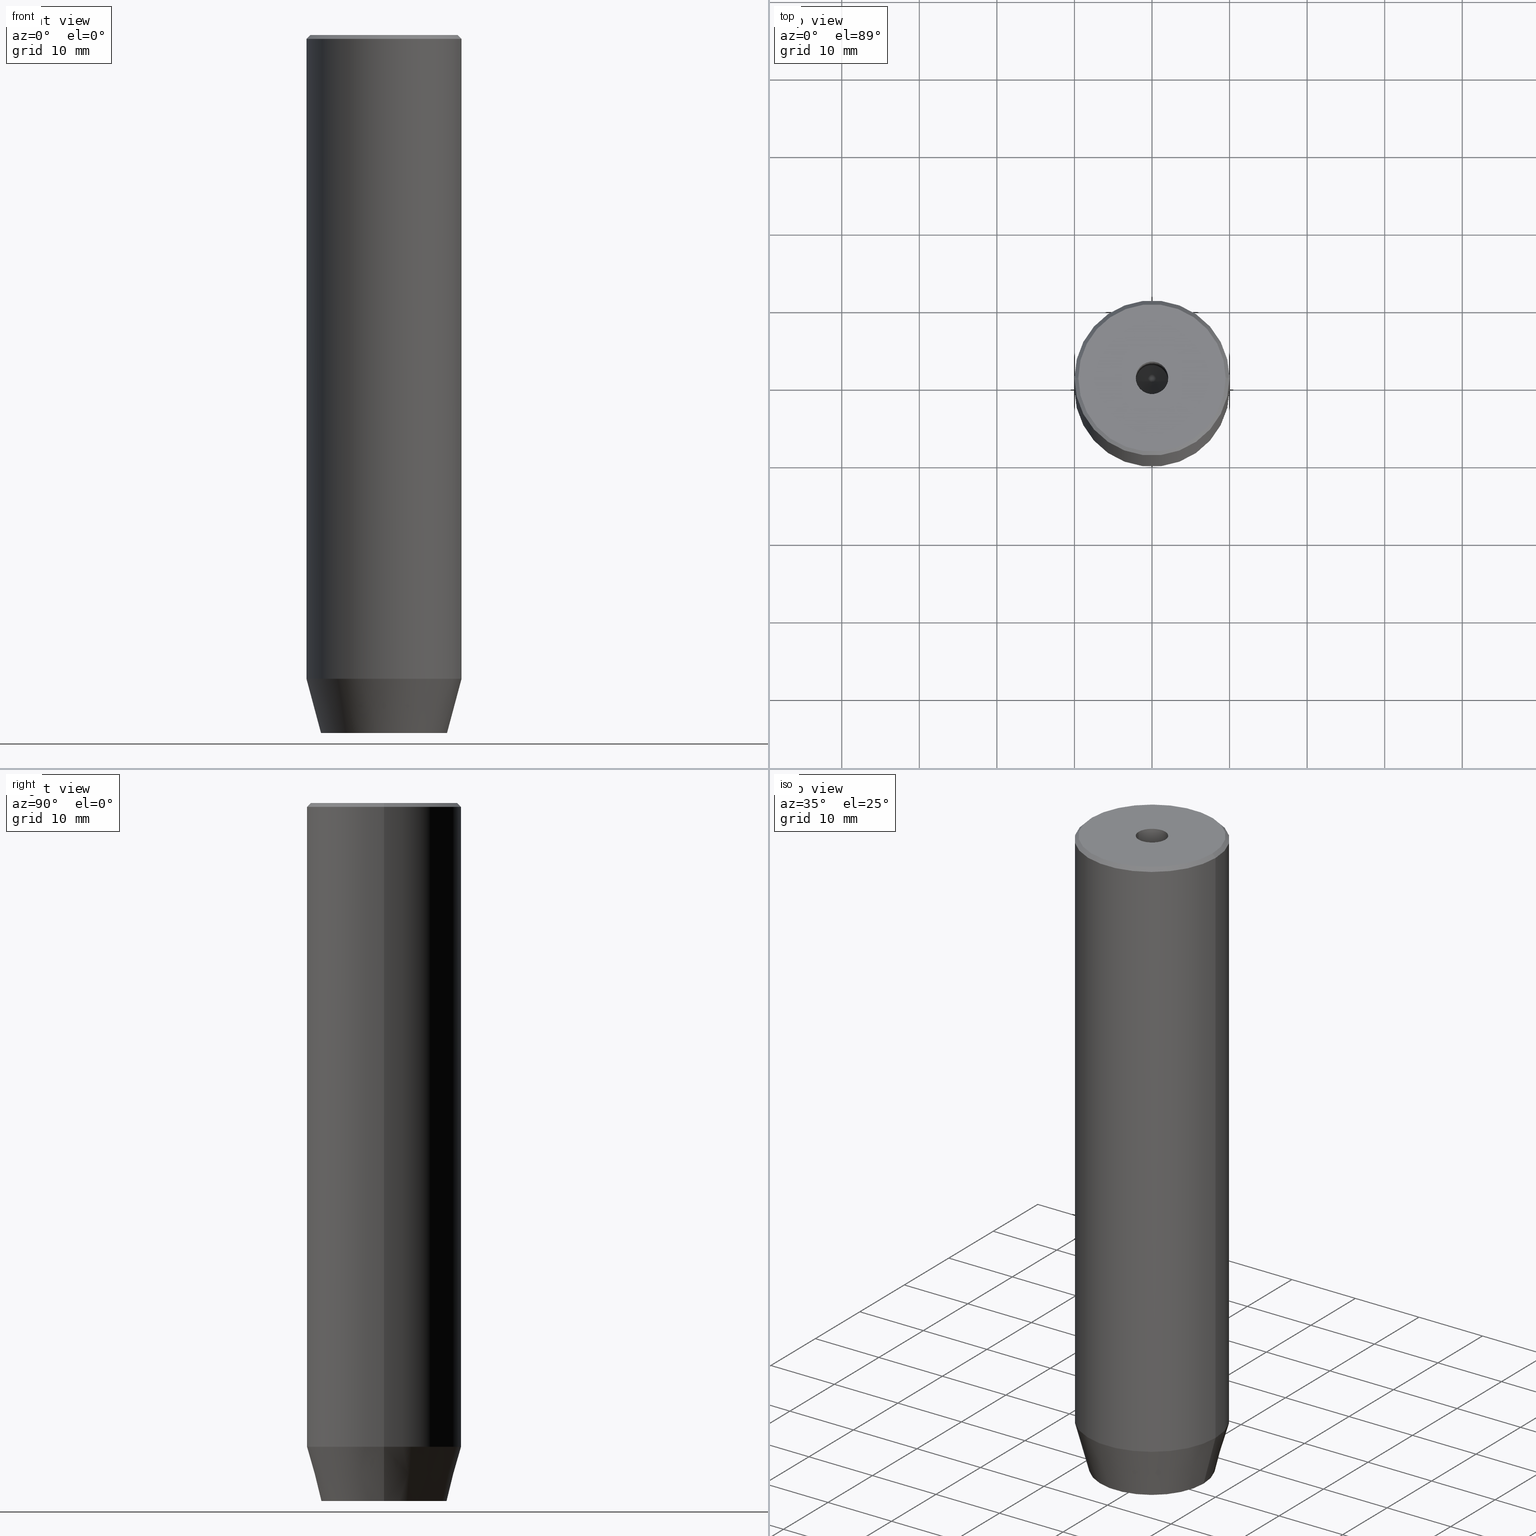
[diagram: canonical four-view strip — front | top / right | iso, engineering-drawing reading convention]
A machine part, canonical four-view strip (front | top / right | iso — engineering-drawing reading convention). The complete STEP part file that produces these views, byte-faithful:
ISO-10303-21;
HEADER;
FILE_DESCRIPTION (( 'STEP AP203' ),
    '1' );
FILE_NAME ('ebbf.STEP',
    '2024-01-02T19:05:43',
    ( '' ),
    ( '' ),
    'SwSTEP 2.0',
    'SolidWorks 2019',
    '' );
FILE_SCHEMA (( 'CONFIG_CONTROL_DESIGN' ));
ENDSEC;

DATA;
#1 = EDGE_CURVE ( 'NONE', #243, #150, #121, .T. ) ;
#2 = VERTEX_POINT ( 'NONE', #529 ) ;
#3 = APPROVAL_DATE_TIME ( #277, #30 ) ;
#4 = LINE ( 'NONE', #499, #350 ) ;
#5 = PERSON_AND_ORGANIZATION_ROLE ( 'design_owner' ) ;
#6 = LINE ( 'NONE', #62, #166 ) ;
#7 = EDGE_LOOP ( 'NONE', ( #74, #97, #93, #557 ) ) ;
#8 = DATE_TIME_ROLE ( 'classification_date' ) ;
#9 = CARTESIAN_POINT ( 'NONE',  ( 0.000000000000000000, 0.000000000000000000, 0.000000000000000000 ) ) ;
#10 = DIRECTION ( 'NONE',  ( -0.8660254037844384856, 0.5000000000000002220, 0.000000000000000000 ) ) ;
#11 = EDGE_LOOP ( 'NONE', ( #562, #449, #553 ) ) ;
#12 = DIRECTION ( 'NONE',  ( 0.8660254037844387076, 0.5000000000000001110, 0.000000000000000000 ) ) ;
#13 = DIRECTION ( 'NONE',  ( -0.5000000000000000000, 0.8660254037844387076, 0.000000000000000000 ) ) ;
#14 = LINE ( 'NONE', #196, #105 ) ;
#15 = AXIS2_PLACEMENT_3D ( 'NONE', #302, #270, #583 ) ;
#16 = ORIENTED_EDGE ( 'NONE', *, *, #435, .T. ) ;
#17 = DATE_AND_TIME ( #507, #522 ) ;
#18 = CYLINDRICAL_SURFACE ( 'NONE', #173, 2.099999999999996980 ) ;
#19 = EDGE_LOOP ( 'NONE', ( #199, #145, #359, #378 ) ) ;
#20 = EDGE_LOOP ( 'NONE', ( #188, #267, #390, #46 ) ) ;
#21 = EDGE_CURVE ( 'NONE', #100, #2, #494, .T. ) ;
#22 = PRODUCT ( 'ebbf', 'ebbf', '', ( #451 ) ) ;
#23 = EDGE_LOOP ( 'NONE', ( #108, #309, #459, #234 ) ) ;
#24 = VECTOR ( 'NONE', #313, 1000.000000000000000 ) ;
#25 = ADVANCED_FACE ( 'NONE', ( #123 ), #472, .T. ) ;
#26 = AXIS2_PLACEMENT_3D ( 'NONE', #533, #528, #139 ) ;
#27 = DIRECTION ( 'NONE',  ( -0.000000000000000000, -0.000000000000000000, 1.000000000000000000 ) ) ;
#28 = DIRECTION ( 'NONE',  ( 1.000000000000000000, 0.000000000000000000, 0.000000000000000000 ) ) ;
#29 = APPROVAL_DATE_TIME ( #428, #577 ) ;
#30 = APPROVAL ( #354, 'NEUR�EN�' ) ;
#31 = CARTESIAN_POINT ( 'NONE',  ( -2.099999999999996980, 2.571758278209438013E-16, 0.000000000000000000 ) ) ;
#32 = AXIS2_PLACEMENT_3D ( 'NONE', #391, #175, #135 ) ;
#33 = CC_DESIGN_APPROVAL ( #30, ( #492 ) ) ;
#34 = DATE_AND_TIME ( #89, #197 ) ;
#35 = PLANE ( 'NONE',  #585 ) ;
#36 = EDGE_CURVE ( 'NONE', #230, #365, #214, .T. ) ;
#37 = VECTOR ( 'NONE', #295, 1000.000000000000000 ) ;
#38 = VECTOR ( 'NONE', #331, 1000.000000000000000 ) ;
#39 = PRODUCT_DEFINITION_FORMATION_WITH_SPECIFIED_SOURCE ( 'LIBOVOLN�', '', #22, .NOT_KNOWN. ) ;
#40 = DIRECTION ( 'NONE',  ( -0.000000000000000000, -0.000000000000000000, 1.000000000000000000 ) ) ;
#41 = EDGE_LOOP ( 'NONE', ( #462, #72, #502, #458, #330, #76 ) ) ;
#42 = COORDINATED_UNIVERSAL_TIME_OFFSET ( 1, 0, .AHEAD. ) ;
#43 = ADVANCED_FACE ( 'NONE', ( #86 ), #213, .T. ) ;
#44 = CARTESIAN_POINT ( 'NONE',  ( 0.000000000000000000, 0.000000000000000000, 0.000000000000000000 ) ) ;
#45 = FACE_BOUND ( 'NONE', #543, .T. ) ;
#46 = ORIENTED_EDGE ( 'NONE', *, *, #463, .F. ) ;
#47 = CARTESIAN_POINT ( 'NONE',  ( 0.000000000000000000, 0.000000000000000000, -82.99999999999998579 ) ) ;
#48 = ADVANCED_FACE ( 'NONE', ( #209 ), #294, .F. ) ;
#49 = CARTESIAN_POINT ( 'NONE',  ( -9.499999999999994671, 0.000000000000000000, 0.000000000000000000 ) ) ;
#50 = ORIENTED_EDGE ( 'NONE', *, *, #132, .F. ) ;
#51 = DIRECTION ( 'NONE',  ( -0.000000000000000000, -0.000000000000000000, -1.000000000000000000 ) ) ;
#52 = CARTESIAN_POINT ( 'NONE',  ( 4.000000000000000000, 0.000000000000000000, -90.00000000000000000 ) ) ;
#53 = VECTOR ( 'NONE', #51, 1000.000000000000000 ) ;
#54 = CARTESIAN_POINT ( 'NONE',  ( 0.000000000000000000, 0.000000000000000000, -87.20000000000000284 ) ) ;
#55 = LOCAL_TIME ( 20, 5, 43.00000000000000000, #312 ) ;
#56 = DIRECTION ( 'NONE',  ( -0.000000000000000000, -0.000000000000000000, 1.000000000000000000 ) ) ;
#57 = ORIENTED_EDGE ( 'NONE', *, *, #21, .F. ) ;
#58 = EDGE_CURVE ( 'NONE', #242, #100, #83, .T. ) ;
#59 = CARTESIAN_POINT ( 'NONE',  ( 4.000000000000000000, -2.309401076758502480, -90.00000000000000000 ) ) ;
#60 = CARTESIAN_POINT ( 'NONE',  ( -2.000000000000000888, -3.464101615137754386, -87.20000000000000284 ) ) ;
#61 = PERSON_AND_ORGANIZATION ( #422, #143 ) ;
#62 = CARTESIAN_POINT ( 'NONE',  ( 10.00000000000000000, 0.000000000000000000, -82.99999999999998579 ) ) ;
#63 = ORIENTED_EDGE ( 'NONE', *, *, #36, .F. ) ;
#64 = EDGE_CURVE ( 'NONE', #467, #365, #537, .T. ) ;
#65 = APPLICATION_PROTOCOL_DEFINITION ( 'international standard', 'config_control_design', 1994, #265 ) ;
#66 = ORIENTED_EDGE ( 'NONE', *, *, #78, .F. ) ;
#67 = CARTESIAN_POINT ( 'NONE',  ( -4.000000000000000000, 0.000000000000000000, -87.20000000000000284 ) ) ;
#68 = VECTOR ( 'NONE', #576, 1000.000000000000000 ) ;
#69 = ORIENTED_EDGE ( 'NONE', *, *, #88, .F. ) ;
#70 = DIRECTION ( 'NONE',  ( -0.000000000000000000, -0.000000000000000000, 1.000000000000000000 ) ) ;
#71 = ADVANCED_FACE ( 'NONE', ( #380 ), #163, .T. ) ;
#72 = ORIENTED_EDGE ( 'NONE', *, *, #570, .T. ) ;
#73 = ADVANCED_FACE ( 'NONE', ( #433 ), #35, .F. ) ;
#74 = ORIENTED_EDGE ( 'NONE', *, *, #236, .T. ) ;
#75 = DIRECTION ( 'NONE',  ( -0.5000000000000003331, -0.8660254037844385966, 0.000000000000000000 ) ) ;
#76 = ORIENTED_EDGE ( 'NONE', *, *, #351, .T. ) ;
#77 = VECTOR ( 'NONE', #429, 1000.000000000000114 ) ;
#78 = EDGE_CURVE ( 'NONE', #515, #226, #289, .T. ) ;
#79 = CC_DESIGN_SECURITY_CLASSIFICATION ( #492, ( #39 ) ) ;
#80 = DIRECTION ( 'NONE',  ( -0.000000000000000000, -0.000000000000000000, 1.000000000000000000 ) ) ;
#81 = CARTESIAN_POINT ( 'NONE',  ( 0.000000000000000000, 0.000000000000000000, 0.000000000000000000 ) ) ;
#82 = COORDINATED_UNIVERSAL_TIME_OFFSET ( 1, 0, .AHEAD. ) ;
#83 = LINE ( 'NONE', #430, #164 ) ;
#84 = DIRECTION ( 'NONE',  ( 0.8660254037844387076, 0.5000000000000001110, 0.000000000000000000 ) ) ;
#85 = DIRECTION ( 'NONE',  ( -0.000000000000000000, -0.000000000000000000, 1.000000000000000000 ) ) ;
#86 = FACE_OUTER_BOUND ( 'NONE', #547, .T. ) ;
#87 = VECTOR ( 'NONE', #417, 1000.000000000000000 ) ;
#88 = EDGE_CURVE ( 'NONE', #446, #421, #477, .T. ) ;
#89 = CALENDAR_DATE ( 2024, 2, 1 ) ;
#90 = CARTESIAN_POINT ( 'NONE',  ( 0.000000000000000000, 0.000000000000000000, -90.00000000000000000 ) ) ;
#91 = ADVANCED_FACE ( 'NONE', ( #179 ), #170, .F. ) ;
#92 = ORIENTED_EDGE ( 'NONE', *, *, #251, .F. ) ;
#93 = ORIENTED_EDGE ( 'NONE', *, *, #570, .F. ) ;
#94 = CIRCLE ( 'NONE', #117, 8.124355652982135467 ) ;
#95 = DIRECTION ( 'NONE',  ( -0.000000000000000000, -0.000000000000000000, 1.000000000000000000 ) ) ;
#96 = DIRECTION ( 'NONE',  ( -0.000000000000000000, -0.000000000000000000, 1.000000000000000000 ) ) ;
#97 = ORIENTED_EDGE ( 'NONE', *, *, #155, .F. ) ;
#98 = CALENDAR_DATE ( 2024, 2, 1 ) ;
#99 = DIRECTION ( 'NONE',  ( 1.000000000000000000, 0.000000000000000000, 0.000000000000000000 ) ) ;
#100 = VERTEX_POINT ( 'NONE', #336 ) ;
#101 = CARTESIAN_POINT ( 'NONE',  ( 0.000000000000000000, 0.000000000000000000, -90.00000000000000000 ) ) ;
#102 = ORIENTED_EDGE ( 'NONE', *, *, #443, .F. ) ;
#103 = COORDINATED_UNIVERSAL_TIME_OFFSET ( 1, 0, .AHEAD. ) ;
#104 = LINE ( 'NONE', #52, #205 ) ;
#105 = VECTOR ( 'NONE', #70, 1000.000000000000000 ) ;
#106 =( GEOMETRIC_REPRESENTATION_CONTEXT ( 3 ) GLOBAL_UNCERTAINTY_ASSIGNED_CONTEXT ( ( #505 ) ) GLOBAL_UNIT_ASSIGNED_CONTEXT ( ( #373, #232, #364 ) ) REPRESENTATION_CONTEXT ( 'NONE', 'WORKASPACE' ) );
#107 = PRODUCT_DEFINITION ( 'NEZN�M�', '', #39, #545 ) ;
#108 = ORIENTED_EDGE ( 'NONE', *, *, #409, .T. ) ;
#109 = CARTESIAN_POINT ( 'NONE',  ( -6.432287649943602629E-15, 0.000000000000000000, -26.26180729995787999 ) ) ;
#110 = DIRECTION ( 'NONE',  ( 1.000000000000000000, 0.000000000000000000, 0.000000000000000000 ) ) ;
#111 = VERTEX_POINT ( 'NONE', #211 ) ;
#112 = PERSON_AND_ORGANIZATION ( #422, #143 ) ;
#113 = CARTESIAN_POINT ( 'NONE',  ( 0.000000000000000000, 4.618802153517006737, -87.20000000000000284 ) ) ;
#114 = DIRECTION ( 'NONE',  ( 1.000000000000000000, 0.000000000000000000, 0.000000000000000000 ) ) ;
#115 = ORIENTED_EDGE ( 'NONE', *, *, #435, .F. ) ;
#116 = FACE_BOUND ( 'NONE', #264, .T. ) ;
#117 = AXIS2_PLACEMENT_3D ( 'NONE', #90, #85, #255 ) ;
#118 = AXIS2_PLACEMENT_3D ( 'NONE', #519, #80, #138 ) ;
#119 = VERTEX_POINT ( 'NONE', #394 ) ;
#120 = EDGE_LOOP ( 'NONE', ( #419, #201, #223, #540 ) ) ;
#121 = LINE ( 'NONE', #323, #392 ) ;
#122 = AXIS2_PLACEMENT_3D ( 'NONE', #101, #346, #268 ) ;
#123 = FACE_OUTER_BOUND ( 'NONE', #356, .T. ) ;
#124 = VECTOR ( 'NONE', #278, 1000.000000000000114 ) ;
#125 = PLANE ( 'NONE',  #368 ) ;
#126 = LINE ( 'NONE', #113, #53 ) ;
#127 = CARTESIAN_POINT ( 'NONE',  ( 2.000000000000000444, 3.464101615137754386, -87.20000000000000284 ) ) ;
#128 = DIRECTION ( 'NONE',  ( 1.000000000000000000, 0.000000000000000000, 0.000000000000000000 ) ) ;
#129 = SECURITY_CLASSIFICATION_LEVEL ( 'unclassified' ) ;
#130 = AXIS2_PLACEMENT_3D ( 'NONE', #483, #580, #167 ) ;
#131 = AXIS2_PLACEMENT_3D ( 'NONE', #81, #210, #418 ) ;
#132 = EDGE_CURVE ( 'NONE', #534, #446, #347, .T. ) ;
#133 = APPLICATION_CONTEXT ( 'configuration controlled 3d designs of mechanical parts and assemblies' ) ;
#134 = VERTEX_POINT ( 'NONE', #306 ) ;
#135 = DIRECTION ( 'NONE',  ( 1.000000000000000000, 0.000000000000000000, 0.000000000000000000 ) ) ;
#136 = EDGE_CURVE ( 'NONE', #150, #454, #126, .T. ) ;
#137 = VERTEX_POINT ( 'NONE', #455 ) ;
#138 = DIRECTION ( 'NONE',  ( 1.000000000000000000, 0.000000000000000000, 0.000000000000000000 ) ) ;
#139 = DIRECTION ( 'NONE',  ( -1.000000000000000000, 0.000000000000000000, -0.000000000000000000 ) ) ;
#140 = APPROVAL ( #431, 'NEUR�EN�' ) ;
#141 = VERTEX_POINT ( 'NONE', #228 ) ;
#142 = AXIS2_PLACEMENT_3D ( 'NONE', #384, #520, #523 ) ;
#143 = ORGANIZATION ( 'NEUR�EN�', 'NEUR�EN�', '' ) ;
#144 = DIRECTION ( 'NONE',  ( -0.000000000000000000, -0.000000000000000000, -1.000000000000000000 ) ) ;
#145 = ORIENTED_EDGE ( 'NONE', *, *, #479, .F. ) ;
#146 = CARTESIAN_POINT ( 'NONE',  ( 10.00000000000000000, 0.000000000000000000, 0.000000000000000000 ) ) ;
#147 = ORIENTED_EDGE ( 'NONE', *, *, #244, .F. ) ;
#148 = EDGE_CURVE ( 'NONE', #271, #515, #405, .T. ) ;
#149 = CARTESIAN_POINT ( 'NONE',  ( 4.000000000000000000, 0.000000000000000000, -87.20000000000000284 ) ) ;
#150 = VERTEX_POINT ( 'NONE', #237 ) ;
#151 = DIRECTION ( 'NONE',  ( 0.000000000000000000, -1.000000000000000000, 0.000000000000000000 ) ) ;
#152 = CIRCLE ( 'NONE', #32, 2.099999999999995648 ) ;
#153 = ORIENTED_EDGE ( 'NONE', *, *, #198, .F. ) ;
#154 = LINE ( 'NONE', #496, #386 ) ;
#155 = EDGE_CURVE ( 'NONE', #271, #191, #4, .T. ) ;
#156 = DIRECTION ( 'NONE',  ( -0.8660254037844385966, -0.4999999999999999445, 0.000000000000000000 ) ) ;
#157 = LINE ( 'NONE', #464, #38 ) ;
#158 = EDGE_LOOP ( 'NONE', ( #401, #178, #408, #115 ) ) ;
#159 = ORIENTED_EDGE ( 'NONE', *, *, #204, .T. ) ;
#160 = CARTESIAN_POINT ( 'NONE',  ( 4.336808689942017736E-16, -4.618802153517006737, -87.20000000000000284 ) ) ;
#161 = ORIENTED_EDGE ( 'NONE', *, *, #290, .T. ) ;
#162 = DIRECTION ( 'NONE',  ( 0.8660254037844384856, -0.5000000000000002220, 0.000000000000000000 ) ) ;
#163 = CYLINDRICAL_SURFACE ( 'NONE', #366, 10.00000000000000000 ) ;
#164 = VECTOR ( 'NONE', #247, 1000.000000000000114 ) ;
#165 = CARTESIAN_POINT ( 'NONE',  ( -2.000000000000000888, -3.464101615137754386, -90.00000000000000000 ) ) ;
#166 = VECTOR ( 'NONE', #447, 1000.000000000000000 ) ;
#167 = DIRECTION ( 'NONE',  ( 1.000000000000000000, 0.000000000000000000, 0.000000000000000000 ) ) ;
#168 = CARTESIAN_POINT ( 'NONE',  ( 2.000000000000000888, -3.464101615137754386, -87.20000000000000284 ) ) ;
#169 = CARTESIAN_POINT ( 'NONE',  ( 2.099999999999995648, 0.000000000000000000, -25.00000000000000000 ) ) ;
#170 = CYLINDRICAL_SURFACE ( 'NONE', #491, 2.099999999999996980 ) ;
#171 = MANIFOLD_SOLID_BREP ( 'Vrt�k z�vitn�ku pro M5 z�vit1', #333 ) ;
#172 = PERSON_AND_ORGANIZATION ( #422, #143 ) ;
#173 = AXIS2_PLACEMENT_3D ( 'NONE', #9, #279, #195 ) ;
#174 = ADVANCED_FACE ( 'NONE', ( #411 ), #18, .F. ) ;
#175 = DIRECTION ( 'NONE',  ( -0.000000000000000000, -0.000000000000000000, 1.000000000000000000 ) ) ;
#176 = EDGE_LOOP ( 'NONE', ( #468, #282, #182, #352 ) ) ;
#177 = CARTESIAN_POINT ( 'NONE',  ( 0.000000000000000000, 0.000000000000000000, -1.990051048614449116E-16 ) ) ;
#178 = ORIENTED_EDGE ( 'NONE', *, *, #443, .T. ) ;
#179 = FACE_OUTER_BOUND ( 'NONE', #20, .T. ) ;
#180 = CARTESIAN_POINT ( 'NONE',  ( 0.000000000000000000, 0.000000000000000000, -0.5000000000000125455 ) ) ;
#181 = DIRECTION ( 'NONE',  ( 0.000000000000000000, -0.000000000000000000, 1.000000000000000000 ) ) ;
#182 = ORIENTED_EDGE ( 'NONE', *, *, #372, .F. ) ;
#183 = AXIS2_PLACEMENT_3D ( 'NONE', #180, #369, #224 ) ;
#184 = CIRCLE ( 'NONE', #261, 2.099999999999995648 ) ;
#185 = LINE ( 'NONE', #60, #475 ) ;
#186 = CARTESIAN_POINT ( 'NONE',  ( 2.000000000000000444, 3.464101615137754386, -87.20000000000000284 ) ) ;
#187 = DIRECTION ( 'NONE',  ( -0.000000000000000000, -0.000000000000000000, -1.000000000000000000 ) ) ;
#188 = ORIENTED_EDGE ( 'NONE', *, *, #318, .F. ) ;
#189 = DIRECTION ( 'NONE',  ( 0.000000000000000000, 1.000000000000000000, 0.000000000000000000 ) ) ;
#190 = APPLICATION_PROTOCOL_DEFINITION ( 'international standard', 'config_control_design', 1994, #133 ) ;
#191 = VERTEX_POINT ( 'NONE', #325 ) ;
#192 = CC_DESIGN_PERSON_AND_ORGANIZATION_ASSIGNMENT ( #273, #5, ( #22 ) ) ;
#193 = ORIENTED_EDGE ( 'NONE', *, *, #337, .T. ) ;
#194 = AXIS2_PLACEMENT_3D ( 'NONE', #291, #95, #99 ) ;
#195 = DIRECTION ( 'NONE',  ( 1.000000000000000000, 0.000000000000000000, 0.000000000000000000 ) ) ;
#196 = CARTESIAN_POINT ( 'NONE',  ( -10.00000000000000000, 1.224646799147353256E-15, 0.000000000000000000 ) ) ;
#197 = LOCAL_TIME ( 20, 5, 43.00000000000000000, #42 ) ;
#198 = EDGE_CURVE ( 'NONE', #226, #446, #461, .T. ) ;
#199 = ORIENTED_EDGE ( 'NONE', *, *, #88, .T. ) ;
#200 = CARTESIAN_POINT ( 'NONE',  ( 2.000000000000000888, -3.464101615137754386, -90.00000000000000000 ) ) ;
#201 = ORIENTED_EDGE ( 'NONE', *, *, #36, .T. ) ;
#202 = CARTESIAN_POINT ( 'NONE',  ( 8.124355652982135467, 0.000000000000000000, -90.00000000000000000 ) ) ;
#203 = EDGE_LOOP ( 'NONE', ( #497, #161 ) ) ;
#204 = EDGE_CURVE ( 'NONE', #243, #137, #157, .T. ) ;
#205 = VECTOR ( 'NONE', #555, 1000.000000000000000 ) ;
#206 = EDGE_LOOP ( 'NONE', ( #342, #424, #398 ) ) ;
#207 = ADVANCED_FACE ( 'NONE', ( #382 ), #420, .F. ) ;
#208 = APPROVAL_ROLE ( '' ) ;
#209 = FACE_OUTER_BOUND ( 'NONE', #206, .T. ) ;
#210 = DIRECTION ( 'NONE',  ( 0.000000000000000000, 0.000000000000000000, -1.000000000000000000 ) ) ;
#211 = CARTESIAN_POINT ( 'NONE',  ( 10.00000000000000000, 0.000000000000000000, -0.5000000000000125455 ) ) ;
#212 = ADVANCED_FACE ( 'NONE', ( #296 ), #579, .F. ) ;
#213 = CONICAL_SURFACE ( 'NONE', #286, 9.499999999999994671, 0.7853981633974412846 ) ;
#214 = LINE ( 'NONE', #525, #37 ) ;
#215 = PERSON_AND_ORGANIZATION_ROLE ( 'creator' ) ;
#216 = CARTESIAN_POINT ( 'NONE',  ( 4.000000000000000000, 0.000000000000000000, -87.20000000000000284 ) ) ;
#217 = PERSON_AND_ORGANIZATION_ROLE ( 'creator' ) ;
#218 = EDGE_CURVE ( 'NONE', #285, #111, #414, .T. ) ;
#219 = CIRCLE ( 'NONE', #341, 2.099999999999998757 ) ;
#220 = ORIENTED_EDGE ( 'NONE', *, *, #565, .T. ) ;
#221 = DIRECTION ( 'NONE',  ( 0.000000000000000000, 0.000000000000000000, 1.000000000000000000 ) ) ;
#222 = DIRECTION ( 'NONE',  ( -0.000000000000000000, -0.000000000000000000, 1.000000000000000000 ) ) ;
#223 = ORIENTED_EDGE ( 'NONE', *, *, #64, .F. ) ;
#224 = DIRECTION ( 'NONE',  ( 1.000000000000000000, 0.000000000000000000, 0.000000000000000000 ) ) ;
#225 = LINE ( 'NONE', #358, #124 ) ;
#226 = VERTEX_POINT ( 'NONE', #59 ) ;
#227 = VECTOR ( 'NONE', #535, 999.9999999999998863 ) ;
#228 = CARTESIAN_POINT ( 'NONE',  ( -10.00000000000000000, 1.224646799147353256E-15, -0.5000000000000125455 ) ) ;
#229 = DIRECTION ( 'NONE',  ( 0.000000000000000000, 0.000000000000000000, -1.000000000000000000 ) ) ;
#230 = VERTEX_POINT ( 'NONE', #554 ) ;
#231 = CARTESIAN_POINT ( 'NONE',  ( -10.00000000000000000, 1.224646799147353256E-15, -82.99999999999998579 ) ) ;
#232 =( NAMED_UNIT ( * ) PLANE_ANGLE_UNIT ( ) SI_UNIT ( $, .RADIAN. ) );
#233 = EDGE_LOOP ( 'NONE', ( #506, #50, #260, #393 ) ) ;
#234 = ORIENTED_EDGE ( 'NONE', *, *, #479, .T. ) ;
#235 = AXIS2_PLACEMENT_3D ( 'NONE', #490, #40, #301 ) ;
#236 = EDGE_CURVE ( 'NONE', #454, #191, #310, .T. ) ;
#237 = CARTESIAN_POINT ( 'NONE',  ( 0.000000000000000000, 4.618802153517006737, -87.20000000000000284 ) ) ;
#238 = CC_DESIGN_APPROVAL ( #577, ( #107 ) ) ;
#239 = ORIENTED_EDGE ( 'NONE', *, *, #251, .T. ) ;
#240 = PERSON_AND_ORGANIZATION ( #422, #143 ) ;
#241 = DIRECTION ( 'NONE',  ( -0.000000000000000000, -0.000000000000000000, 1.000000000000000000 ) ) ;
#242 = VERTEX_POINT ( 'NONE', #109 ) ;
#243 = VERTEX_POINT ( 'NONE', #357 ) ;
#244 = EDGE_CURVE ( 'NONE', #230, #518, #501, .T. ) ;
#245 = AXIS2_PLACEMENT_3D ( 'NONE', #127, #338, #263 ) ;
#246 = ORIENTED_EDGE ( 'NONE', *, *, #344, .F. ) ;
#247 = DIRECTION ( 'NONE',  ( -0.8571673007021108903, 1.049727191138616847E-16, 0.5150380749100565980 ) ) ;
#248 = ADVANCED_FACE ( 'NONE', ( #316 ), #276, .F. ) ;
#249 = CARTESIAN_POINT ( 'NONE',  ( 0.000000000000000000, 0.000000000000000000, -82.99999999999998579 ) ) ;
#250 = DATE_AND_TIME ( #434, #441 ) ;
#251 = EDGE_CURVE ( 'NONE', #137, #454, #473, .T. ) ;
#252 = AXIS2_PLACEMENT_3D ( 'NONE', #249, #27, #128 ) ;
#253 = DIRECTION ( 'NONE',  ( -0.000000000000000000, -0.000000000000000000, 1.000000000000000000 ) ) ;
#254 = APPROVAL_DATE_TIME ( #34, #140 ) ;
#255 = DIRECTION ( 'NONE',  ( 1.000000000000000000, 0.000000000000000000, 0.000000000000000000 ) ) ;
#256 = PERSON_AND_ORGANIZATION ( #422, #143 ) ;
#257 = CC_DESIGN_DATE_AND_TIME_ASSIGNMENT ( #17, #8, ( #492 ) ) ;
#258 = PLANE ( 'NONE',  #245 ) ;
#259 = AXIS2_PLACEMENT_3D ( 'NONE', #343, #487, #221 ) ;
#260 = ORIENTED_EDGE ( 'NONE', *, *, #500, .F. ) ;
#261 = AXIS2_PLACEMENT_3D ( 'NONE', #566, #469, #324 ) ;
#262 = DIRECTION ( 'NONE',  ( 1.000000000000000000, 0.000000000000000000, -0.000000000000000000 ) ) ;
#263 = DIRECTION ( 'NONE',  ( -0.8660254037844385966, 0.5000000000000001110, 0.000000000000000000 ) ) ;
#264 = EDGE_LOOP ( 'NONE', ( #92, #486, #69, #153, #374, #513 ) ) ;
#265 = APPLICATION_CONTEXT ( 'configuration controlled 3d designs of mechanical parts and assemblies' ) ;
#266 = DIRECTION ( 'NONE',  ( 0.000000000000000000, 1.000000000000000000, 0.000000000000000000 ) ) ;
#267 = ORIENTED_EDGE ( 'NONE', *, *, #21, .T. ) ;
#268 = DIRECTION ( 'NONE',  ( 1.000000000000000000, 0.000000000000000000, 0.000000000000000000 ) ) ;
#269 = LINE ( 'NONE', #67, #578 ) ;
#270 = DIRECTION ( 'NONE',  ( -0.000000000000000000, -0.000000000000000000, 1.000000000000000000 ) ) ;
#271 = VERTEX_POINT ( 'NONE', #367 ) ;
#272 = AXIS2_PLACEMENT_3D ( 'NONE', #516, #75, #162 ) ;
#273 = PERSON_AND_ORGANIZATION ( #422, #143 ) ;
#274 = ORIENTED_EDGE ( 'NONE', *, *, #297, .F. ) ;
#275 = EDGE_CURVE ( 'NONE', #134, #285, #440, .T. ) ;
#276 = PLANE ( 'NONE',  #287 ) ;
#277 = DATE_AND_TIME ( #98, #55 ) ;
#278 = DIRECTION ( 'NONE',  ( -0.8660254037844384856, -0.5000000000000002220, 0.000000000000000000 ) ) ;
#279 = DIRECTION ( 'NONE',  ( -0.000000000000000000, -0.000000000000000000, 1.000000000000000000 ) ) ;
#280 = ADVANCED_FACE ( 'NONE', ( #480 ), #258, .F. ) ;
#281 = DIRECTION ( 'NONE',  ( 1.000000000000000000, 0.000000000000000000, 0.000000000000000000 ) ) ;
#282 = ORIENTED_EDGE ( 'NONE', *, *, #218, .T. ) ;
#283 = VECTOR ( 'NONE', #144, 1000.000000000000000 ) ;
#284 = CONICAL_SURFACE ( 'NONE', #131, 9.499999999999994671, 0.7853981633974412846 ) ;
#285 = VERTEX_POINT ( 'NONE', #340 ) ;
#286 = AXIS2_PLACEMENT_3D ( 'NONE', #387, #478, #427 ) ;
#287 = AXIS2_PLACEMENT_3D ( 'NONE', #410, #13, #156 ) ;
#288 = CONICAL_SURFACE ( 'NONE', #118, 2.099999999999995648, 1.029744258676651647 ) ;
#289 = LINE ( 'NONE', #388, #68 ) ;
#290 = EDGE_CURVE ( 'NONE', #285, #134, #521, .T. ) ;
#291 = CARTESIAN_POINT ( 'NONE',  ( 0.000000000000000000, 0.000000000000000000, -82.99999999999998579 ) ) ;
#292 = PERSON_AND_ORGANIZATION ( #422, #143 ) ;
#293 = EDGE_CURVE ( 'NONE', #242, #119, #484, .T. ) ;
#294 = CONICAL_SURFACE ( 'NONE', #142, 2.099999999999995648, 1.029744258676651647 ) ;
#295 = DIRECTION ( 'NONE',  ( -0.2588190451025213501, 3.169619151431772337E-17, 0.9659258262890680902 ) ) ;
#296 = FACE_OUTER_BOUND ( 'NONE', #23, .T. ) ;
#297 = EDGE_CURVE ( 'NONE', #518, #230, #94, .T. ) ;
#298 = PLANE ( 'NONE',  #26 ) ;
#299 = EDGE_LOOP ( 'NONE', ( #274, #147 ) ) ;
#300 = COORDINATED_UNIVERSAL_TIME_OFFSET ( 1, 0, .AHEAD. ) ;
#301 = DIRECTION ( 'NONE',  ( 1.000000000000000000, 0.000000000000000000, 0.000000000000000000 ) ) ;
#302 = CARTESIAN_POINT ( 'NONE',  ( 0.000000000000000000, 0.000000000000000000, 0.000000000000000000 ) ) ;
#303 = LINE ( 'NONE', #308, #403 ) ;
#304 = AXIS2_PLACEMENT_3D ( 'NONE', #177, #96, #281 ) ;
#305 = VERTEX_POINT ( 'NONE', #339 ) ;
#306 = CARTESIAN_POINT ( 'NONE',  ( -9.499999999999994671, 0.000000000000000000, 0.000000000000000000 ) ) ;
#307 = DIRECTION ( 'NONE',  ( 1.000000000000000000, 0.000000000000000000, 0.000000000000000000 ) ) ;
#308 = CARTESIAN_POINT ( 'NONE',  ( 2.099999999999996980, 0.000000000000000000, 0.000000000000000000 ) ) ;
#309 = ORIENTED_EDGE ( 'NONE', *, *, #204, .F. ) ;
#310 = LINE ( 'NONE', #450, #87 ) ;
#311 = EDGE_CURVE ( 'NONE', #111, #141, #415, .T. ) ;
#312 = COORDINATED_UNIVERSAL_TIME_OFFSET ( 1, 0, .AHEAD. ) ;
#313 = DIRECTION ( 'NONE',  ( -0.000000000000000000, -0.000000000000000000, 1.000000000000000000 ) ) ;
#314 = PLANE ( 'NONE',  #514 ) ;
#315 = ORIENTED_EDGE ( 'NONE', *, *, #1, .F. ) ;
#316 = FACE_OUTER_BOUND ( 'NONE', #327, .T. ) ;
#317 = DIRECTION ( 'NONE',  ( -0.000000000000000000, -0.000000000000000000, -1.000000000000000000 ) ) ;
#318 = EDGE_CURVE ( 'NONE', #100, #119, #152, .T. ) ;
#319 = LINE ( 'NONE', #49, #416 ) ;
#320 = ORIENTED_EDGE ( 'NONE', *, *, #244, .T. ) ;
#321 = CIRCLE ( 'NONE', #183, 10.00000000000000000 ) ;
#322 = CC_DESIGN_PERSON_AND_ORGANIZATION_ASSIGNMENT ( #292, #481, ( #492 ) ) ;
#323 = CARTESIAN_POINT ( 'NONE',  ( -2.000000000000000000, 3.464101615137754830, -87.20000000000000284 ) ) ;
#324 = DIRECTION ( 'NONE',  ( 1.000000000000000000, 0.000000000000000000, 0.000000000000000000 ) ) ;
#325 = CARTESIAN_POINT ( 'NONE',  ( 4.000000000000000000, 2.309401076758503368, -90.00000000000000000 ) ) ;
#326 = CARTESIAN_POINT ( 'NONE',  ( 0.000000000000000000, 0.000000000000000000, 0.000000000000000000 ) ) ;
#327 = EDGE_LOOP ( 'NONE', ( #239, #560, #315, #159 ) ) ;
#328 = ORIENTED_EDGE ( 'NONE', *, *, #311, .F. ) ;
#329 = VECTOR ( 'NONE', #189, 1000.000000000000000 ) ;
#330 = ORIENTED_EDGE ( 'NONE', *, *, #425, .T. ) ;
#331 = DIRECTION ( 'NONE',  ( -0.000000000000000000, -0.000000000000000000, -1.000000000000000000 ) ) ;
#332 = ORIENTED_EDGE ( 'NONE', *, *, #337, .F. ) ;
#333 = CLOSED_SHELL ( 'NONE', ( #91, #541, #510, #383, #71, #460, #550, #544, #25, #43, #248, #212, #207, #524, #73, #280, #571, #48, #174 ) ) ;
#334 = VECTOR ( 'NONE', #558, 1000.000000000000114 ) ;
#335 = APPROVAL_PERSON_ORGANIZATION ( #485, #140, #488 ) ;
#336 = CARTESIAN_POINT ( 'NONE',  ( -2.099999999999995648, 2.571758278209436040E-16, -25.00000000000000000 ) ) ;
#337 = EDGE_CURVE ( 'NONE', #365, #467, #432, .T. ) ;
#338 = DIRECTION ( 'NONE',  ( 0.5000000000000001110, 0.8660254037844385966, -0.000000000000000000 ) ) ;
#339 = CARTESIAN_POINT ( 'NONE',  ( -4.000000000000000000, -2.309401076758503368, -87.20000000000000284 ) ) ;
#340 = CARTESIAN_POINT ( 'NONE',  ( 9.499999999999994671, 1.194030629168669075E-15, 0.000000000000000000 ) ) ;
#341 = AXIS2_PLACEMENT_3D ( 'NONE', #406, #504, #110 ) ;
#342 = ORIENTED_EDGE ( 'NONE', *, *, #58, .F. ) ;
#343 = CARTESIAN_POINT ( 'NONE',  ( -4.000000000000000000, 0.000000000000000000, -87.20000000000000284 ) ) ;
#344 = EDGE_CURVE ( 'NONE', #493, #2, #573, .T. ) ;
#345 = EDGE_LOOP ( 'NONE', ( #57, #371, #509, #584 ) ) ;
#346 = DIRECTION ( 'NONE',  ( -0.000000000000000000, -0.000000000000000000, 1.000000000000000000 ) ) ;
#347 = LINE ( 'NONE', #536, #283 ) ;
#348 = FACE_OUTER_BOUND ( 'NONE', #120, .T. ) ;
#349 = FACE_OUTER_BOUND ( 'NONE', #530, .T. ) ;
#350 = VECTOR ( 'NONE', #317, 1000.000000000000000 ) ;
#351 = EDGE_CURVE ( 'NONE', #305, #243, #269, .T. ) ;
#352 = ORIENTED_EDGE ( 'NONE', *, *, #565, .F. ) ;
#353 = AXIS2_PLACEMENT_3D ( 'NONE', #457, #181, #538 ) ;
#354 = APPROVAL_STATUS ( 'not_yet_approved' ) ;
#355 = DIRECTION ( 'NONE',  ( 0.8660254037844385966, -0.5000000000000001110, 0.000000000000000000 ) ) ;
#356 = EDGE_LOOP ( 'NONE', ( #63, #320, #442, #332 ) ) ;
#357 = CARTESIAN_POINT ( 'NONE',  ( -4.000000000000000000, 2.309401076758503368, -87.20000000000000284 ) ) ;
#358 = CARTESIAN_POINT ( 'NONE',  ( 2.000000000000000888, -3.464101615137754386, -87.20000000000000284 ) ) ;
#359 = ORIENTED_EDGE ( 'NONE', *, *, #425, .F. ) ;
#360 = CARTESIAN_POINT ( 'NONE',  ( 0.000000000000000000, 0.000000000000000000, 0.000000000000000000 ) ) ;
#361 = CC_DESIGN_PERSON_AND_ORGANIZATION_ASSIGNMENT ( #172, #215, ( #39 ) ) ;
#362 = DIRECTION ( 'NONE',  ( -0.000000000000000000, -0.000000000000000000, 1.000000000000000000 ) ) ;
#363 = CARTESIAN_POINT ( 'NONE',  ( 10.00000000000000000, 0.000000000000000000, -82.99999999999998579 ) ) ;
#364 =( NAMED_UNIT ( * ) SI_UNIT ( $, .STERADIAN. ) SOLID_ANGLE_UNIT ( ) );
#365 = VERTEX_POINT ( 'NONE', #231 ) ;
#366 = AXIS2_PLACEMENT_3D ( 'NONE', #572, #489, #582 ) ;
#367 = CARTESIAN_POINT ( 'NONE',  ( 4.000000000000000000, 2.309401076758503368, -87.20000000000000284 ) ) ;
#368 = AXIS2_PLACEMENT_3D ( 'NONE', #168, #377, #567 ) ;
#369 = DIRECTION ( 'NONE',  ( 0.000000000000000000, 0.000000000000000000, -1.000000000000000000 ) ) ;
#370 = EDGE_LOOP ( 'NONE', ( #498, #66, #413, #568 ) ) ;
#371 = ORIENTED_EDGE ( 'NONE', *, *, #517, .F. ) ;
#372 = EDGE_CURVE ( 'NONE', #141, #111, #321, .T. ) ;
#373 =( LENGTH_UNIT ( ) NAMED_UNIT ( * ) SI_UNIT ( .MILLI., .METRE. ) );
#374 = ORIENTED_EDGE ( 'NONE', *, *, #402, .F. ) ;
#375 = CONICAL_SURFACE ( 'NONE', #453, 10.00000000000000000, 0.2617993877991500740 ) ;
#376 = FACE_OUTER_BOUND ( 'NONE', #176, .T. ) ;
#377 = DIRECTION ( 'NONE',  ( 0.5000000000000003331, -0.8660254037844385966, 0.000000000000000000 ) ) ;
#378 = ORIENTED_EDGE ( 'NONE', *, *, #132, .T. ) ;
#379 = SHAPE_DEFINITION_REPRESENTATION ( #423, #439 ) ;
#380 = FACE_OUTER_BOUND ( 'NONE', #158, .T. ) ;
#381 = CARTESIAN_POINT ( 'NONE',  ( -2.000000000000000000, 3.464101615137754830, -90.00000000000000000 ) ) ;
#382 = FACE_OUTER_BOUND ( 'NONE', #19, .T. ) ;
#383 = ADVANCED_FACE ( 'NONE', ( #348 ), #375, .T. ) ;
#384 = CARTESIAN_POINT ( 'NONE',  ( 0.000000000000000000, 0.000000000000000000, -25.00000000000000000 ) ) ;
#385 = AXIS2_PLACEMENT_3D ( 'NONE', #360, #241, #561 ) ;
#386 = VECTOR ( 'NONE', #187, 1000.000000000000000 ) ;
#387 = CARTESIAN_POINT ( 'NONE',  ( 0.000000000000000000, 0.000000000000000000, 0.000000000000000000 ) ) ;
#388 = CARTESIAN_POINT ( 'NONE',  ( 4.000000000000000000, -2.309401076758502480, -87.20000000000000284 ) ) ;
#389 = DIRECTION ( 'NONE',  ( 1.000000000000000000, 0.000000000000000000, 0.000000000000000000 ) ) ;
#390 = ORIENTED_EDGE ( 'NONE', *, *, #438, .T. ) ;
#391 = CARTESIAN_POINT ( 'NONE',  ( 0.000000000000000000, 0.000000000000000000, -25.00000000000000000 ) ) ;
#392 = VECTOR ( 'NONE', #84, 999.9999999999998863 ) ;
#393 = ORIENTED_EDGE ( 'NONE', *, *, #78, .T. ) ;
#394 = CARTESIAN_POINT ( 'NONE',  ( 2.099999999999995648, 0.000000000000000000, -25.00000000000000000 ) ) ;
#395 = DIRECTION ( 'NONE',  ( 0.8571673007021108903, 0.000000000000000000, 0.5150380749100565980 ) ) ;
#396 = PRODUCT_RELATED_PRODUCT_CATEGORY ( 'detail', '', ( #22 ) ) ;
#397 = PLANE ( 'NONE',  #353 ) ;
#398 = ORIENTED_EDGE ( 'NONE', *, *, #517, .T. ) ;
#399 = DIRECTION ( 'NONE',  ( -0.7071067811865425767, 0.000000000000000000, -0.7071067811865525687 ) ) ;
#400 = AXIS2_PLACEMENT_3D ( 'NONE', #527, #436, #389 ) ;
#401 = ORIENTED_EDGE ( 'NONE', *, *, #64, .T. ) ;
#402 = EDGE_CURVE ( 'NONE', #191, #226, #104, .T. ) ;
#403 = VECTOR ( 'NONE', #56, 1000.000000000000000 ) ;
#404 = CARTESIAN_POINT ( 'NONE',  ( 9.499999999999994671, 1.163414459189984894E-15, 0.000000000000000000 ) ) ;
#405 = LINE ( 'NONE', #149, #551 ) ;
#406 = CARTESIAN_POINT ( 'NONE',  ( 0.000000000000000000, 0.000000000000000000, -1.990051048614449116E-16 ) ) ;
#407 = DIRECTION ( 'NONE',  ( -1.000000000000000000, 0.000000000000000000, -0.000000000000000000 ) ) ;
#408 = ORIENTED_EDGE ( 'NONE', *, *, #372, .T. ) ;
#409 = EDGE_CURVE ( 'NONE', #421, #137, #495, .T. ) ;
#410 = CARTESIAN_POINT ( 'NONE',  ( -2.000000000000000000, 3.464101615137754830, -87.20000000000000284 ) ) ;
#411 = FACE_OUTER_BOUND ( 'NONE', #345, .T. ) ;
#412 = CARTESIAN_POINT ( 'NONE',  ( -4.000000000000000000, -2.309401076758503368, -90.00000000000000000 ) ) ;
#413 = ORIENTED_EDGE ( 'NONE', *, *, #148, .F. ) ;
#414 = LINE ( 'NONE', #404, #227 ) ;
#415 = CIRCLE ( 'NONE', #400, 10.00000000000000000 ) ;
#416 = VECTOR ( 'NONE', #399, 999.9999999999998863 ) ;
#417 = DIRECTION ( 'NONE',  ( 0.8660254037844385966, -0.5000000000000001110, 0.000000000000000000 ) ) ;
#418 = DIRECTION ( 'NONE',  ( -1.000000000000000000, 0.000000000000000000, 0.000000000000000000 ) ) ;
#419 = ORIENTED_EDGE ( 'NONE', *, *, #297, .T. ) ;
#420 = PLANE ( 'NONE',  #272 ) ;
#421 = VERTEX_POINT ( 'NONE', #412 ) ;
#422 = PERSON ( 'NEUR�EN�', 'NEUR�EN�', 'NEUR�EN�', ('NEUR�EN�'), ('NEUR�EN�'), ('NEUR�EN�') ) ;
#423 = PRODUCT_DEFINITION_SHAPE ( 'NONE', 'NONE',  #107 ) ;
#424 = ORIENTED_EDGE ( 'NONE', *, *, #293, .T. ) ;
#425 = EDGE_CURVE ( 'NONE', #534, #305, #185, .T. ) ;
#426 = AXIS2_PLACEMENT_3D ( 'NONE', #326, #508, #114 ) ;
#427 = DIRECTION ( 'NONE',  ( -1.000000000000000000, 0.000000000000000000, 0.000000000000000000 ) ) ;
#428 = DATE_AND_TIME ( #466, #564 ) ;
#429 = DIRECTION ( 'NONE',  ( -0.8660254037844384856, 0.5000000000000002220, 0.000000000000000000 ) ) ;
#430 = CARTESIAN_POINT ( 'NONE',  ( -2.099999999999995648, 2.571758278209436040E-16, -25.00000000000000000 ) ) ;
#431 = APPROVAL_STATUS ( 'not_yet_approved' ) ;
#432 = CIRCLE ( 'NONE', #235, 10.00000000000000000 ) ;
#433 = FACE_OUTER_BOUND ( 'NONE', #370, .T. ) ;
#434 = CALENDAR_DATE ( 2024, 2, 1 ) ;
#435 = EDGE_CURVE ( 'NONE', #467, #111, #548, .T. ) ;
#436 = DIRECTION ( 'NONE',  ( 0.000000000000000000, 0.000000000000000000, -1.000000000000000000 ) ) ;
#437 = ORIENTED_EDGE ( 'NONE', *, *, #275, .F. ) ;
#438 = EDGE_CURVE ( 'NONE', #2, #493, #219, .T. ) ;
#439 = ADVANCED_BREP_SHAPE_REPRESENTATION ( 'ebbf', ( #171, #426 ), #106 ) ;
#440 = CIRCLE ( 'NONE', #385, 9.499999999999994671 ) ;
#441 = LOCAL_TIME ( 20, 5, 43.00000000000000000, #300 ) ;
#442 = ORIENTED_EDGE ( 'NONE', *, *, #556, .T. ) ;
#443 = EDGE_CURVE ( 'NONE', #365, #141, #14, .T. ) ;
#444 = DATE_TIME_ROLE ( 'creation_date' ) ;
#445 = DIRECTION ( 'NONE',  ( -0.000000000000000000, 0.000000000000000000, -1.000000000000000000 ) ) ;
#446 = VERTEX_POINT ( 'NONE', #559 ) ;
#447 = DIRECTION ( 'NONE',  ( 0.2588190451025213501, 0.000000000000000000, 0.9659258262890680902 ) ) ;
#448 = CARTESIAN_POINT ( 'NONE',  ( 2.099999999999998757, 0.000000000000000000, -1.990051048614449116E-16 ) ) ;
#449 = ORIENTED_EDGE ( 'NONE', *, *, #58, .T. ) ;
#450 = CARTESIAN_POINT ( 'NONE',  ( 2.000000000000000444, 3.464101615137754386, -90.00000000000000000 ) ) ;
#451 = MECHANICAL_CONTEXT ( 'NONE', #265, 'mechanical' ) ;
#452 = FACE_OUTER_BOUND ( 'NONE', #203, .T. ) ;
#453 = AXIS2_PLACEMENT_3D ( 'NONE', #47, #362, #307 ) ;
#454 = VERTEX_POINT ( 'NONE', #512 ) ;
#455 = CARTESIAN_POINT ( 'NONE',  ( -4.000000000000000000, 2.309401076758503368, -90.00000000000000000 ) ) ;
#456 = CARTESIAN_POINT ( 'NONE',  ( -4.000000000000000000, 0.000000000000000000, -90.00000000000000000 ) ) ;
#457 = CARTESIAN_POINT ( 'NONE',  ( 0.000000000000000000, 0.000000000000000000, 0.000000000000000000 ) ) ;
#458 = ORIENTED_EDGE ( 'NONE', *, *, #500, .T. ) ;
#459 = ORIENTED_EDGE ( 'NONE', *, *, #351, .F. ) ;
#460 = ADVANCED_FACE ( 'NONE', ( #116, #465 ), #298, .T. ) ;
#461 = LINE ( 'NONE', #200, #334 ) ;
#462 = ORIENTED_EDGE ( 'NONE', *, *, #1, .T. ) ;
#463 = EDGE_CURVE ( 'NONE', #119, #493, #303, .T. ) ;
#464 = CARTESIAN_POINT ( 'NONE',  ( -4.000000000000000000, 2.309401076758503368, -87.20000000000000284 ) ) ;
#465 = FACE_OUTER_BOUND ( 'NONE', #299, .T. ) ;
#466 = CALENDAR_DATE ( 2024, 2, 1 ) ;
#467 = VERTEX_POINT ( 'NONE', #363 ) ;
#468 = ORIENTED_EDGE ( 'NONE', *, *, #290, .F. ) ;
#469 = DIRECTION ( 'NONE',  ( -0.000000000000000000, -0.000000000000000000, 1.000000000000000000 ) ) ;
#470 = ORIENTED_EDGE ( 'NONE', *, *, #311, .T. ) ;
#471 = CC_DESIGN_PERSON_AND_ORGANIZATION_ASSIGNMENT ( #240, #217, ( #107 ) ) ;
#472 = CONICAL_SURFACE ( 'NONE', #194, 10.00000000000000000, 0.2617993877991500740 ) ;
#473 = LINE ( 'NONE', #381, #552 ) ;
#474 = VECTOR ( 'NONE', #253, 1000.000000000000000 ) ;
#475 = VECTOR ( 'NONE', #10, 1000.000000000000114 ) ;
#476 = VECTOR ( 'NONE', #355, 1000.000000000000000 ) ;
#477 = LINE ( 'NONE', #165, #77 ) ;
#478 = DIRECTION ( 'NONE',  ( 0.000000000000000000, 0.000000000000000000, -1.000000000000000000 ) ) ;
#479 = EDGE_CURVE ( 'NONE', #305, #421, #154, .T. ) ;
#480 = FACE_OUTER_BOUND ( 'NONE', #7, .T. ) ;
#481 = PERSON_AND_ORGANIZATION_ROLE ( 'classification_officer' ) ;
#482 = CC_DESIGN_PERSON_AND_ORGANIZATION_ASSIGNMENT ( #256, #526, ( #39 ) ) ;
#483 = CARTESIAN_POINT ( 'NONE',  ( 0.000000000000000000, 0.000000000000000000, 0.000000000000000000 ) ) ;
#484 = LINE ( 'NONE', #169, #563 ) ;
#485 = PERSON_AND_ORGANIZATION ( #422, #143 ) ;
#486 = ORIENTED_EDGE ( 'NONE', *, *, #409, .F. ) ;
#487 = DIRECTION ( 'NONE',  ( -1.000000000000000000, 0.000000000000000000, 0.000000000000000000 ) ) ;
#488 = APPROVAL_ROLE ( '' ) ;
#489 = DIRECTION ( 'NONE',  ( -0.000000000000000000, -0.000000000000000000, 1.000000000000000000 ) ) ;
#490 = CARTESIAN_POINT ( 'NONE',  ( 0.000000000000000000, 0.000000000000000000, -82.99999999999998579 ) ) ;
#491 = AXIS2_PLACEMENT_3D ( 'NONE', #44, #222, #28 ) ;
#492 = SECURITY_CLASSIFICATION ( '', '', #129 ) ;
#493 = VERTEX_POINT ( 'NONE', #448 ) ;
#494 = LINE ( 'NONE', #31, #474 ) ;
#495 = LINE ( 'NONE', #456, #329 ) ;
#496 = CARTESIAN_POINT ( 'NONE',  ( -4.000000000000000000, -2.309401076758503368, -87.20000000000000284 ) ) ;
#497 = ORIENTED_EDGE ( 'NONE', *, *, #275, .T. ) ;
#498 = ORIENTED_EDGE ( 'NONE', *, *, #402, .T. ) ;
#499 = CARTESIAN_POINT ( 'NONE',  ( 4.000000000000000000, 2.309401076758503368, -87.20000000000000284 ) ) ;
#500 = EDGE_CURVE ( 'NONE', #515, #534, #225, .T. ) ;
#501 = CIRCLE ( 'NONE', #122, 8.124355652982135467 ) ;
#502 = ORIENTED_EDGE ( 'NONE', *, *, #148, .T. ) ;
#503 = APPROVAL_ROLE ( '' ) ;
#504 = DIRECTION ( 'NONE',  ( -0.000000000000000000, -0.000000000000000000, 1.000000000000000000 ) ) ;
#505 = UNCERTAINTY_MEASURE_WITH_UNIT (LENGTH_MEASURE( 1.000000000000000082E-05 ), #373, 'distance_accuracy_value', 'NONE');
#506 = ORIENTED_EDGE ( 'NONE', *, *, #198, .T. ) ;
#507 = CALENDAR_DATE ( 2024, 2, 1 ) ;
#508 = DIRECTION ( 'NONE',  ( 0.000000000000000000, 0.000000000000000000, 1.000000000000000000 ) ) ;
#509 = ORIENTED_EDGE ( 'NONE', *, *, #463, .T. ) ;
#510 = ADVANCED_FACE ( 'NONE', ( #376 ), #284, .T. ) ;
#511 = CARTESIAN_POINT ( 'NONE',  ( 4.000000000000000000, -2.309401076758502480, -87.20000000000000284 ) ) ;
#512 = CARTESIAN_POINT ( 'NONE',  ( 2.168404344971008868E-16, 4.618802153517005848, -90.00000000000000000 ) ) ;
#513 = ORIENTED_EDGE ( 'NONE', *, *, #236, .F. ) ;
#514 = AXIS2_PLACEMENT_3D ( 'NONE', #54, #229, #407 ) ;
#515 = VERTEX_POINT ( 'NONE', #511 ) ;
#516 = CARTESIAN_POINT ( 'NONE',  ( -2.000000000000000888, -3.464101615137754386, -87.20000000000000284 ) ) ;
#517 = EDGE_CURVE ( 'NONE', #119, #100, #184, .T. ) ;
#518 = VERTEX_POINT ( 'NONE', #202 ) ;
#519 = CARTESIAN_POINT ( 'NONE',  ( 0.000000000000000000, 0.000000000000000000, -25.00000000000000000 ) ) ;
#520 = DIRECTION ( 'NONE',  ( -0.000000000000000000, -0.000000000000000000, 1.000000000000000000 ) ) ;
#521 = CIRCLE ( 'NONE', #130, 9.499999999999994671 ) ;
#522 = LOCAL_TIME ( 20, 5, 43.00000000000000000, #103 ) ;
#523 = DIRECTION ( 'NONE',  ( 1.000000000000000000, 0.000000000000000000, 0.000000000000000000 ) ) ;
#524 = ADVANCED_FACE ( 'NONE', ( #575 ), #125, .F. ) ;
#525 = CARTESIAN_POINT ( 'NONE',  ( -10.00000000000000000, 1.224646799147353256E-15, -82.99999999999998579 ) ) ;
#526 = PERSON_AND_ORGANIZATION_ROLE ( 'design_supplier' ) ;
#527 = CARTESIAN_POINT ( 'NONE',  ( 0.000000000000000000, 0.000000000000000000, -0.5000000000000125455 ) ) ;
#528 = DIRECTION ( 'NONE',  ( 0.000000000000000000, 0.000000000000000000, -1.000000000000000000 ) ) ;
#529 = CARTESIAN_POINT ( 'NONE',  ( -2.099999999999998757, 2.571758278209440478E-16, -1.990051048614449116E-16 ) ) ;
#530 = EDGE_LOOP ( 'NONE', ( #102, #193, #16, #470 ) ) ;
#531 = CC_DESIGN_DATE_AND_TIME_ASSIGNMENT ( #250, #444, ( #107 ) ) ;
#532 = ORIENTED_EDGE ( 'NONE', *, *, #218, .F. ) ;
#533 = CARTESIAN_POINT ( 'NONE',  ( 0.000000000000000000, 8.124355652982135467, -90.00000000000000000 ) ) ;
#534 = VERTEX_POINT ( 'NONE', #160 ) ;
#535 = DIRECTION ( 'NONE',  ( 0.7071067811865425767, 8.659560562354873694E-17, -0.7071067811865525687 ) ) ;
#536 = CARTESIAN_POINT ( 'NONE',  ( 4.336808689942017736E-16, -4.618802153517006737, -87.20000000000000284 ) ) ;
#537 = CIRCLE ( 'NONE', #252, 10.00000000000000000 ) ;
#538 = DIRECTION ( 'NONE',  ( 1.000000000000000000, 0.000000000000000000, 0.000000000000000000 ) ) ;
#539 = APPROVAL_PERSON_ORGANIZATION ( #61, #577, #208 ) ;
#540 = ORIENTED_EDGE ( 'NONE', *, *, #556, .F. ) ;
#541 = ADVANCED_FACE ( 'NONE', ( #569 ), #288, .F. ) ;
#542 = FACE_OUTER_BOUND ( 'NONE', #41, .T. ) ;
#543 = EDGE_LOOP ( 'NONE', ( #246, #581 ) ) ;
#544 = ADVANCED_FACE ( 'NONE', ( #349 ), #546, .T. ) ;
#545 = DESIGN_CONTEXT ( 'detailed design', #133, 'design' ) ;
#546 = CYLINDRICAL_SURFACE ( 'NONE', #15, 10.00000000000000000 ) ;
#547 = EDGE_LOOP ( 'NONE', ( #532, #437, #220, #328 ) ) ;
#548 = LINE ( 'NONE', #146, #24 ) ;
#549 = APPROVAL_STATUS ( 'not_yet_approved' ) ;
#550 = ADVANCED_FACE ( 'NONE', ( #45, #452 ), #397, .T. ) ;
#551 = VECTOR ( 'NONE', #151, 1000.000000000000000 ) ;
#552 = VECTOR ( 'NONE', #12, 999.9999999999998863 ) ;
#553 = ORIENTED_EDGE ( 'NONE', *, *, #318, .T. ) ;
#554 = CARTESIAN_POINT ( 'NONE',  ( -8.124355652982135467, 1.109796706851640556E-15, -90.00000000000000000 ) ) ;
#555 = DIRECTION ( 'NONE',  ( 0.000000000000000000, -1.000000000000000000, 0.000000000000000000 ) ) ;
#556 = EDGE_CURVE ( 'NONE', #518, #467, #6, .T. ) ;
#557 = ORIENTED_EDGE ( 'NONE', *, *, #136, .T. ) ;
#558 = DIRECTION ( 'NONE',  ( -0.8660254037844384856, -0.5000000000000002220, 0.000000000000000000 ) ) ;
#559 = CARTESIAN_POINT ( 'NONE',  ( 4.336808689942017736E-16, -4.618802153517006737, -90.00000000000000000 ) ) ;
#560 = ORIENTED_EDGE ( 'NONE', *, *, #136, .F. ) ;
#561 = DIRECTION ( 'NONE',  ( 1.000000000000000000, 0.000000000000000000, 0.000000000000000000 ) ) ;
#562 = ORIENTED_EDGE ( 'NONE', *, *, #293, .F. ) ;
#563 = VECTOR ( 'NONE', #395, 1000.000000000000114 ) ;
#564 = LOCAL_TIME ( 20, 5, 43.00000000000000000, #82 ) ;
#565 = EDGE_CURVE ( 'NONE', #134, #141, #319, .T. ) ;
#566 = CARTESIAN_POINT ( 'NONE',  ( 0.000000000000000000, 0.000000000000000000, -25.00000000000000000 ) ) ;
#567 = DIRECTION ( 'NONE',  ( 0.8660254037844384856, 0.5000000000000002220, 0.000000000000000000 ) ) ;
#568 = ORIENTED_EDGE ( 'NONE', *, *, #155, .T. ) ;
#569 = FACE_OUTER_BOUND ( 'NONE', #11, .T. ) ;
#570 = EDGE_CURVE ( 'NONE', #150, #271, #586, .T. ) ;
#571 = ADVANCED_FACE ( 'NONE', ( #542 ), #314, .T. ) ;
#572 = CARTESIAN_POINT ( 'NONE',  ( 0.000000000000000000, 0.000000000000000000, 0.000000000000000000 ) ) ;
#573 = CIRCLE ( 'NONE', #304, 2.099999999999998757 ) ;
#574 = APPROVAL_PERSON_ORGANIZATION ( #112, #30, #503 ) ;
#575 = FACE_OUTER_BOUND ( 'NONE', #233, .T. ) ;
#576 = DIRECTION ( 'NONE',  ( -0.000000000000000000, -0.000000000000000000, -1.000000000000000000 ) ) ;
#577 = APPROVAL ( #549, 'NEUR�EN�' ) ;
#578 = VECTOR ( 'NONE', #266, 1000.000000000000000 ) ;
#579 = PLANE ( 'NONE',  #259 ) ;
#580 = DIRECTION ( 'NONE',  ( -0.000000000000000000, -0.000000000000000000, 1.000000000000000000 ) ) ;
#581 = ORIENTED_EDGE ( 'NONE', *, *, #438, .F. ) ;
#582 = DIRECTION ( 'NONE',  ( 1.000000000000000000, 0.000000000000000000, 0.000000000000000000 ) ) ;
#583 = DIRECTION ( 'NONE',  ( 1.000000000000000000, 0.000000000000000000, 0.000000000000000000 ) ) ;
#584 = ORIENTED_EDGE ( 'NONE', *, *, #344, .T. ) ;
#585 = AXIS2_PLACEMENT_3D ( 'NONE', #216, #262, #445 ) ;
#586 = LINE ( 'NONE', #186, #476 ) ;
#587 = CC_DESIGN_APPROVAL ( #140, ( #39 ) ) ;
ENDSEC;
END-ISO-10303-21;
